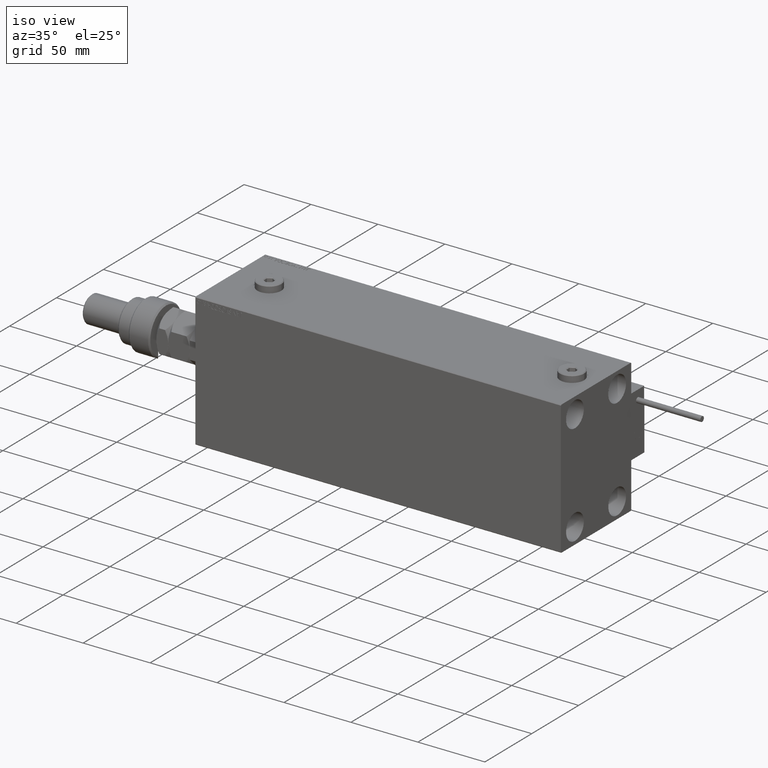
[diagram: clean part render]
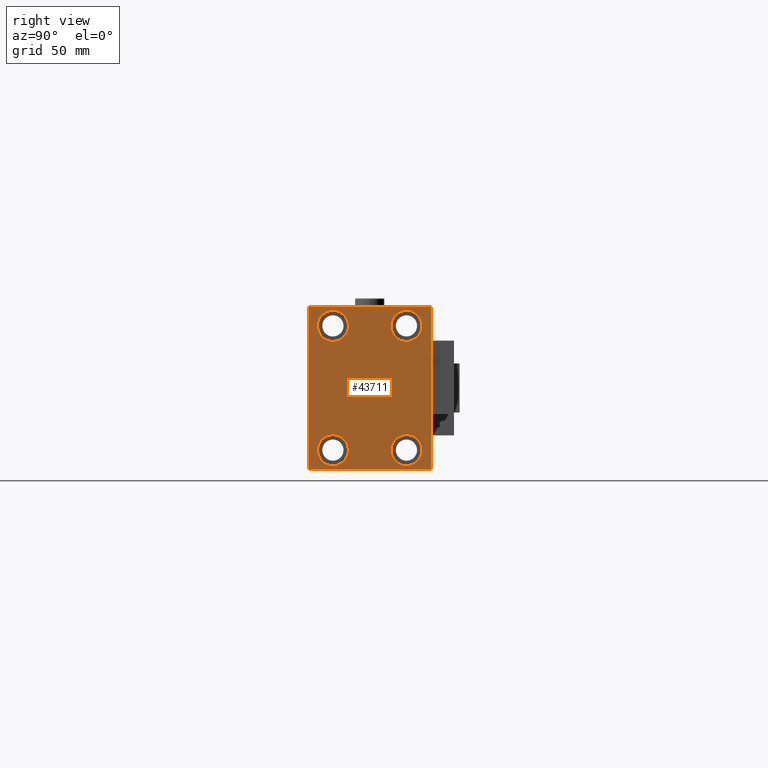
[diagram: tour spotlight — one face highlighted and labeled with its STEP entity id]
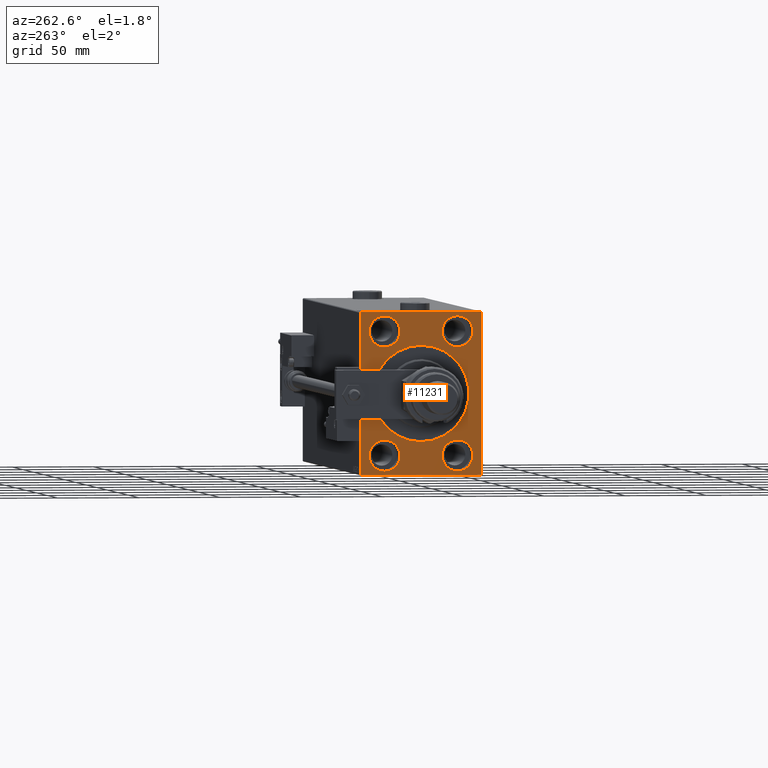
[diagram: tour spotlight — one face highlighted and labeled with its STEP entity id]
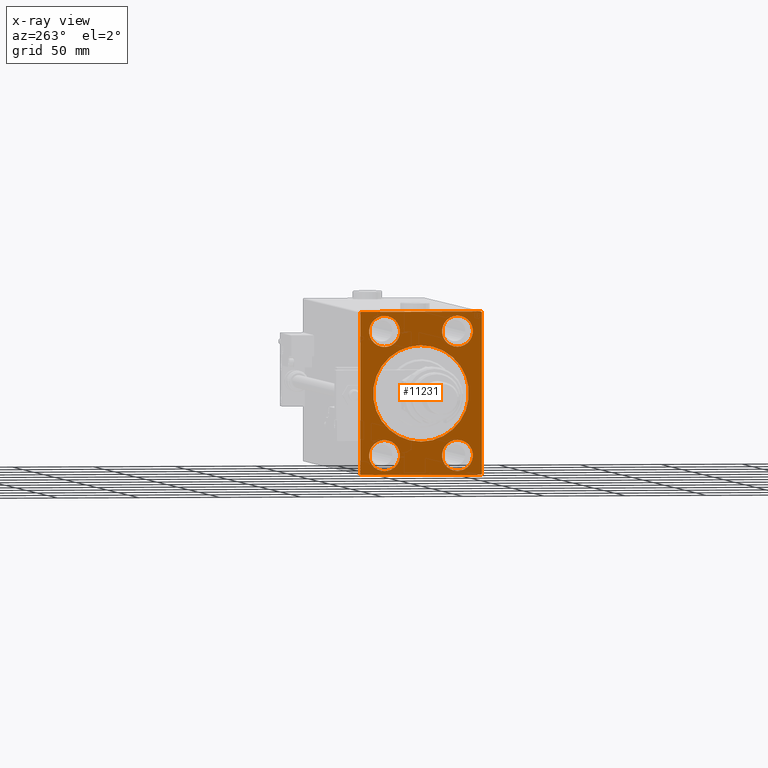
[diagram: x-ray of the same camera — body ghosted, this tour face saturated]
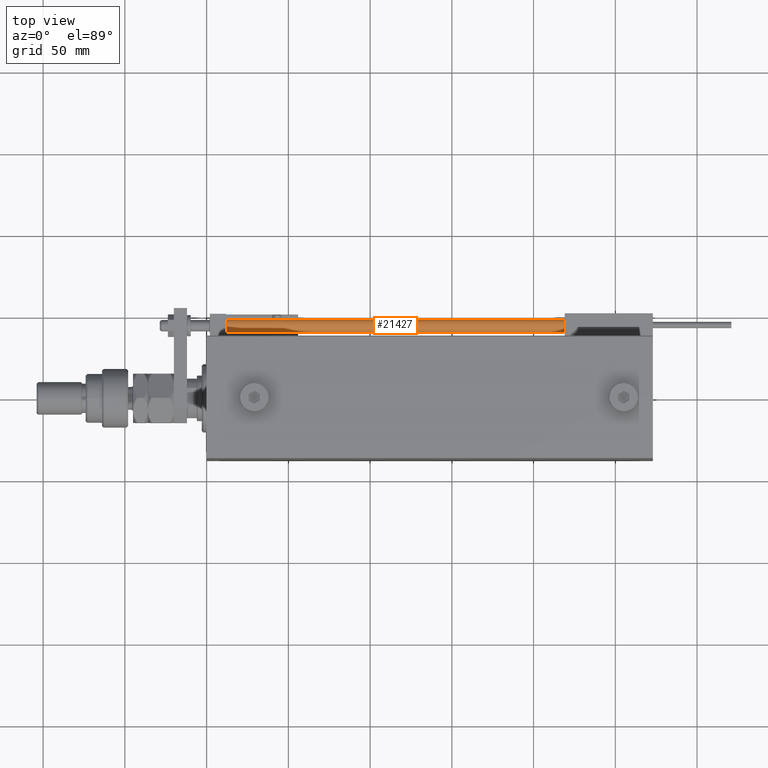
[diagram: tour spotlight — one face highlighted and labeled with its STEP entity id]
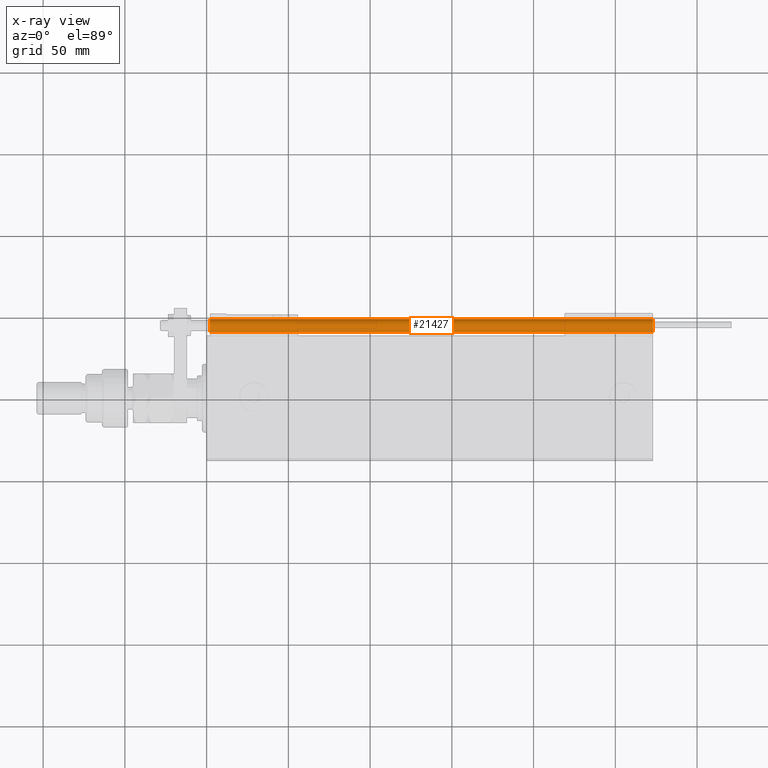
[diagram: x-ray of the same camera — body ghosted, this tour face saturated]
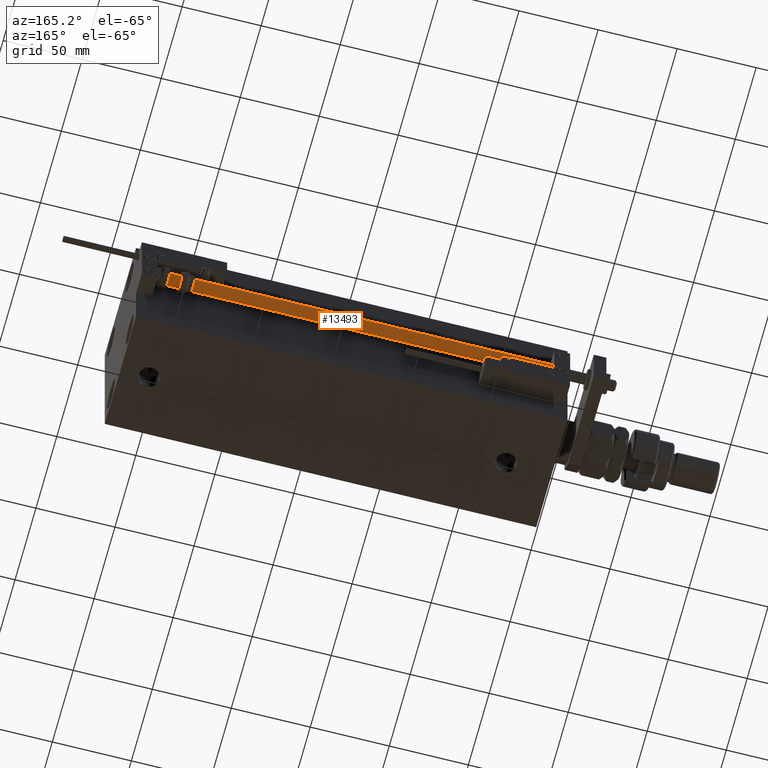
[diagram: tour spotlight — one face highlighted and labeled with its STEP entity id]
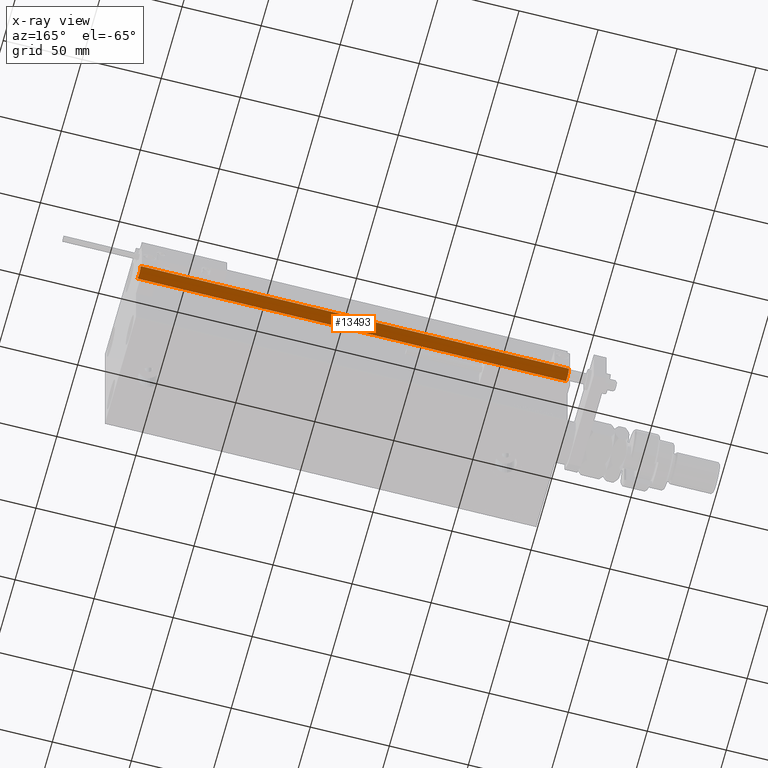
[diagram: x-ray of the same camera — body ghosted, this tour face saturated]
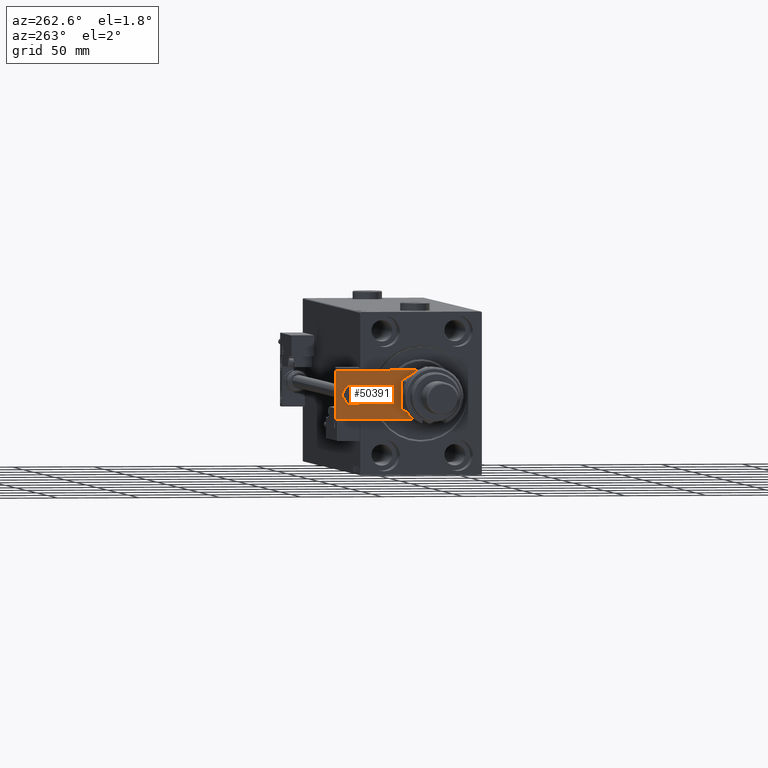
[diagram: tour spotlight — one face highlighted and labeled with its STEP entity id]
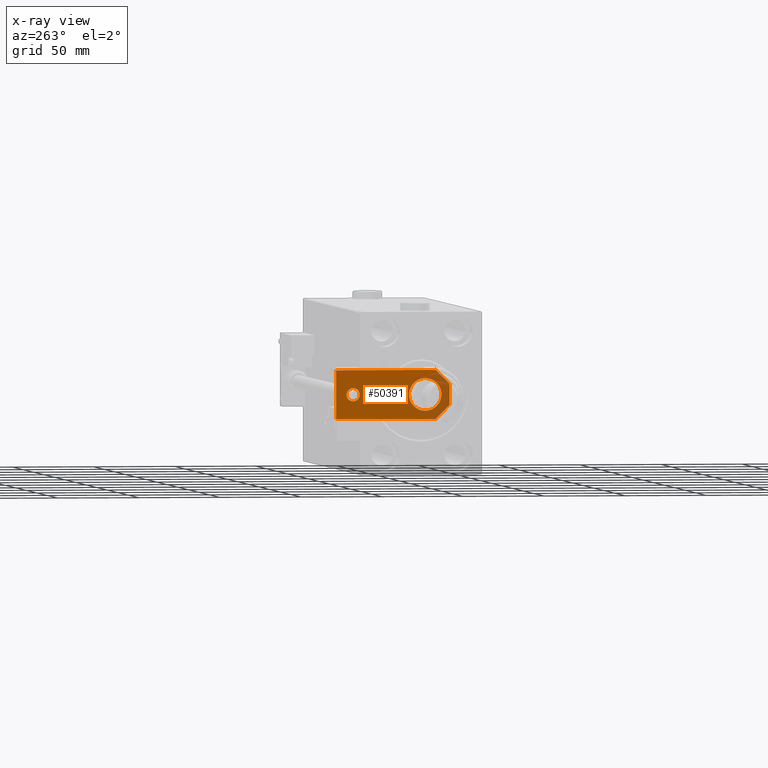
[diagram: x-ray of the same camera — body ghosted, this tour face saturated]
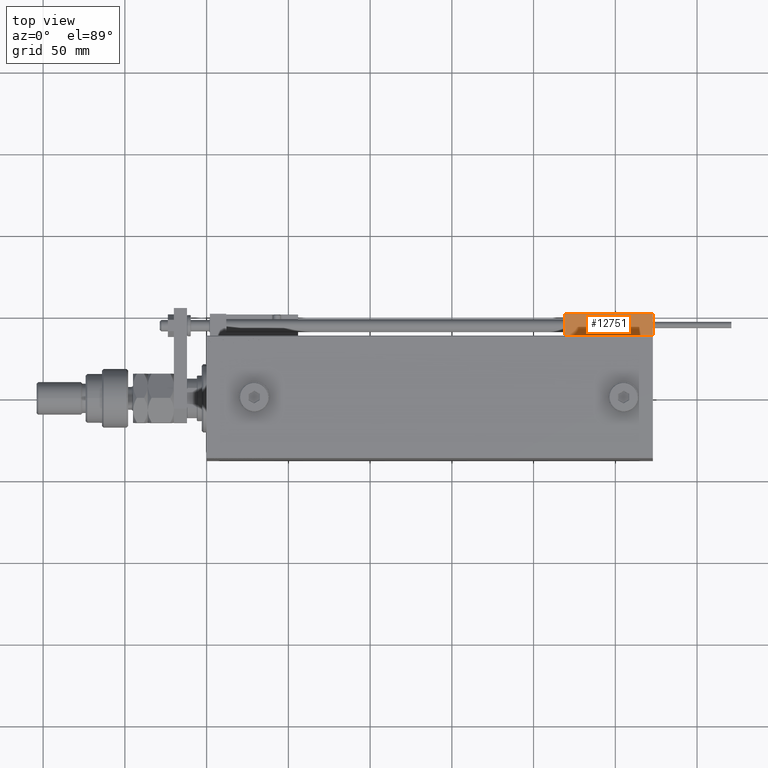
[diagram: tour spotlight — one face highlighted and labeled with its STEP entity id]
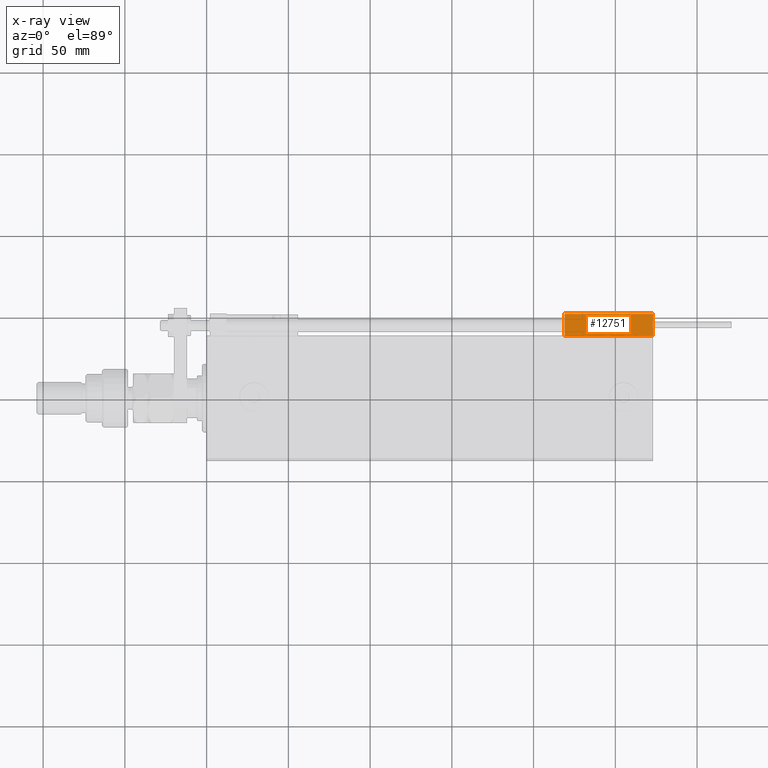
[diagram: x-ray of the same camera — body ghosted, this tour face saturated]
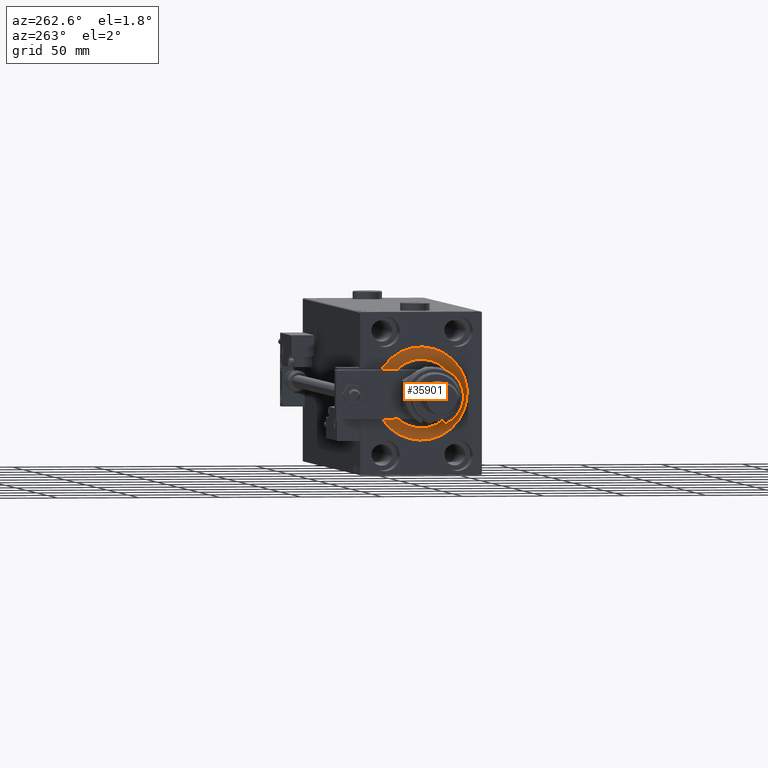
[diagram: tour spotlight — one face highlighted and labeled with its STEP entity id]
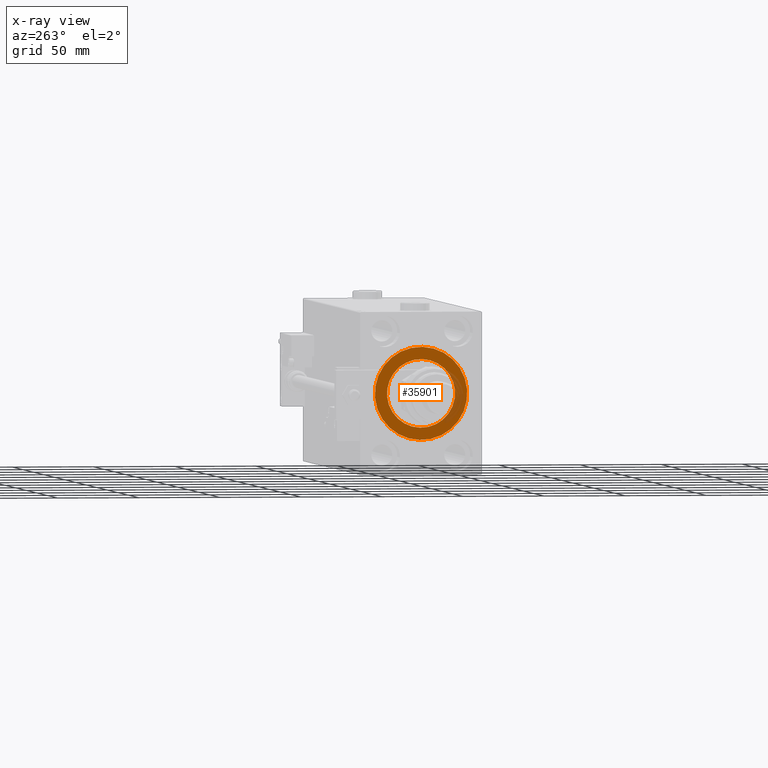
[diagram: x-ray of the same camera — body ghosted, this tour face saturated]
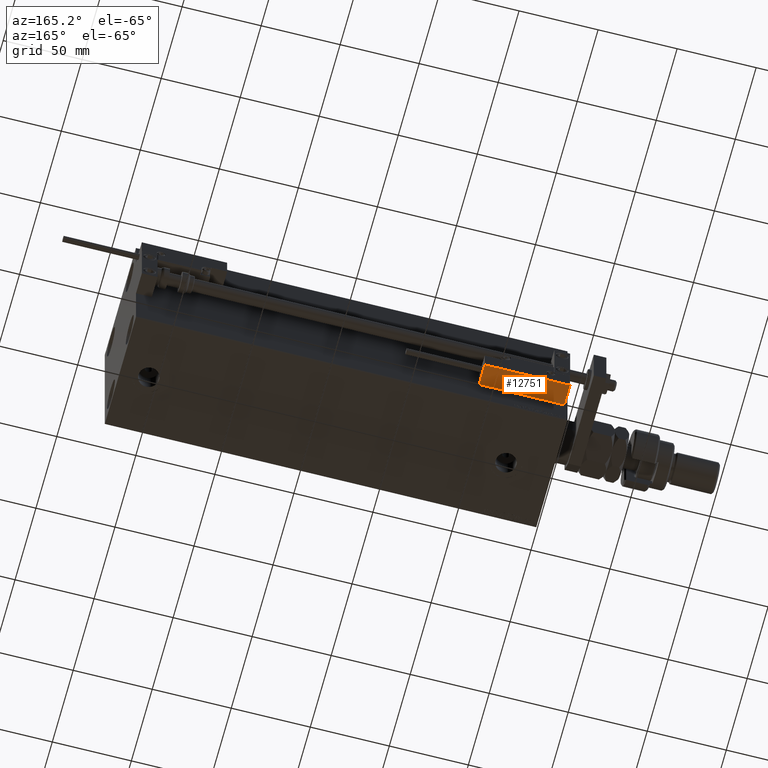
[diagram: tour spotlight — one face highlighted and labeled with its STEP entity id]
A machine part: a face-by-face anatomy tour. The part has 1424 B-rep faces; the first image is the clean iso view, then the 8 largest visible faces are spotlighted one at a time (largest first), each with its STEP entity span.

Face 1 — right view, entity #43711. In plain terms, the highlighted planar face has unit normal (1, 0, 0).
Definition (entity closure, byte-faithful):
#264 = VERTEX_POINT ( 'NONE', #697 ) ;
#303 = DIRECTION ( 'NONE',  ( 0.000000000000000000, 0.000000000000000000, 1.000000000000000000 ) ) ;
#697 = CARTESIAN_POINT ( 'NONE',  ( 273.0000000000000000, -36.99999999999997868, -50.00000000000000711 ) ) ;
#1445 = EDGE_CURVE ( 'NONE', #5358, #264, #39771, .T. ) ;
#1546 = CARTESIAN_POINT ( 'NONE',  ( 273.0000000000000000, -22.50000000000000711, -47.49999999999999289 ) ) ;
#1777 = ORIENTED_EDGE ( 'NONE', *, *, #27452, .T. ) ;
#2280 = ORIENTED_EDGE ( 'NONE', *, *, #25174, .T. ) ;
#2438 = FACE_BOUND ( 'NONE', #12095, .T. ) ;
#3258 = CARTESIAN_POINT ( 'NONE',  ( 273.0000000000000000, 0.000000000000000000, 0.000000000000000000 ) ) ;
#5044 = DIRECTION ( 'NONE',  ( -1.000000000000000000, -0.000000000000000000, -0.000000000000000000 ) ) ;
#5323 = AXIS2_PLACEMENT_3D ( 'NONE', #40699, #20551, #54422 ) ;
#5358 = VERTEX_POINT ( 'NONE', #10391 ) ;
#5427 = ORIENTED_EDGE ( 'NONE', *, *, #43320, .T. ) ;
#5966 = EDGE_CURVE ( 'NONE', #7621, #13899, #51327, .T. ) ;
#6301 = AXIS2_PLACEMENT_3D ( 'NONE', #29814, #46888, #17939 ) ;
#6560 = LINE ( 'NONE', #27787, #51893 ) ;
#7181 = CARTESIAN_POINT ( 'NONE',  ( 273.0000000000000000, -43.49999999999997158, 43.49999999999997158 ) ) ;
#7254 = CARTESIAN_POINT ( 'NONE',  ( 273.0000000000000000, 22.50000000000000355, 37.99999999999999289 ) ) ;
#7391 = DIRECTION ( 'NONE',  ( 0.000000000000000000, 0.000000000000000000, -1.000000000000000000 ) ) ;
#7493 = EDGE_LOOP ( 'NONE', ( #1777, #27898 ) ) ;
#7621 = VERTEX_POINT ( 'NONE', #15639 ) ;
#8350 = VECTOR ( 'NONE', #34255, 1000.000000000000000 ) ;
#9624 = DIRECTION ( 'NONE',  ( 0.000000000000000000, 0.000000000000000000, 1.000000000000000000 ) ) ;
#9686 = CARTESIAN_POINT ( 'NONE',  ( 273.0000000000000000, 37.49999999999999289, 49.49999999999995026 ) ) ;
#9981 = ORIENTED_EDGE ( 'NONE', *, *, #19165, .T. ) ;
#10391 = CARTESIAN_POINT ( 'NONE',  ( 273.0000000000000000, -37.50000000000000711, -49.50000000000000711 ) ) ;
#10808 = CARTESIAN_POINT ( 'NONE',  ( 273.0000000000000000, 37.50000000000000711, -50.00000000000000000 ) ) ;
#11209 = EDGE_CURVE ( 'NONE', #28828, #51659, #34984, .T. ) ;
#11315 = LINE ( 'NONE', #7181, #30956 ) ;
#11529 = FACE_BOUND ( 'NONE', #22938, .T. ) ;
#12095 = EDGE_LOOP ( 'NONE', ( #5427, #9981 ) ) ;
#12382 = CARTESIAN_POINT ( 'NONE',  ( 273.0000000000000000, -37.50000000000000711, -50.00000000000000711 ) ) ;
#12608 = EDGE_CURVE ( 'NONE', #21584, #44024, #52426, .T. ) ;
#13149 = AXIS2_PLACEMENT_3D ( 'NONE', #3258, #36071, #7391 ) ;
#13475 = LINE ( 'NONE', #38828, #23867 ) ;
#13646 = CARTESIAN_POINT ( 'NONE',  ( 273.0000000000000000, 37.50000000000000711, -49.49999999999997158 ) ) ;
#13744 = DIRECTION ( 'NONE',  ( 0.000000000000000000, 0.000000000000000000, -1.000000000000000000 ) ) ;
#13899 = VERTEX_POINT ( 'NONE', #50228 ) ;
#14955 = CARTESIAN_POINT ( 'NONE',  ( 273.0000000000000000, -43.49999999999896261, -43.50000000000138556 ) ) ;
#15639 = CARTESIAN_POINT ( 'NONE',  ( 273.0000000000000000, 36.99999999999993605, 50.00000000000000711 ) ) ;
#15674 = AXIS2_PLACEMENT_3D ( 'NONE', #38116, #5044, #21844 ) ;
#15710 = DIRECTION ( 'NONE',  ( 0.000000000000000000, 1.000000000000000000, 9.251858538542970348E-17 ) ) ;
#16833 = VERTEX_POINT ( 'NONE', #32700 ) ;
#17144 = DIRECTION ( 'NONE',  ( -1.000000000000000000, -0.000000000000000000, -0.000000000000000000 ) ) ;
#17742 = CARTESIAN_POINT ( 'NONE',  ( 273.0000000000000000, 22.50000000000000355, 28.49999999999998934 ) ) ;
#17939 = DIRECTION ( 'NONE',  ( 0.000000000000000000, 0.000000000000000000, 1.000000000000000000 ) ) ;
#18427 = AXIS2_PLACEMENT_3D ( 'NONE', #36729, #25131, #303 ) ;
#19165 = EDGE_CURVE ( 'NONE', #35180, #42598, #29874, .T. ) ;
#19259 = PLANE ( 'NONE',  #13149 ) ;
#19684 = EDGE_CURVE ( 'NONE', #51118, #21584, #6560, .T. ) ;
#19861 = LINE ( 'NONE', #12382, #54097 ) ;
#20551 = DIRECTION ( 'NONE',  ( -1.000000000000000000, -0.000000000000000000, -0.000000000000000000 ) ) ;
#21156 = CARTESIAN_POINT ( 'NONE',  ( 273.0000000000000000, -22.50000000000000711, -37.99999999999999289 ) ) ;
#21584 = VERTEX_POINT ( 'NONE', #13646 ) ;
#21844 = DIRECTION ( 'NONE',  ( 0.000000000000000000, 0.000000000000000000, 1.000000000000000000 ) ) ;
#21956 = DIRECTION ( 'NONE',  ( -1.000000000000000000, -0.000000000000000000, -0.000000000000000000 ) ) ;
#22697 = CIRCLE ( 'NONE', #15674, 9.500000000000001776 ) ;
#22938 = EDGE_LOOP ( 'NONE', ( #30055, #2280 ) ) ;
#23024 = EDGE_CURVE ( 'NONE', #16833, #5358, #13475, .T. ) ;
#23148 = VERTEX_POINT ( 'NONE', #26549 ) ;
#23317 = EDGE_CURVE ( 'NONE', #49312, #23148, #26487, .T. ) ;
#23867 = VECTOR ( 'NONE', #13744, 1000.000000000000000 ) ;
#24340 = DIRECTION ( 'NONE',  ( 0.000000000000000000, 0.000000000000000000, 1.000000000000000000 ) ) ;
#24511 = ORIENTED_EDGE ( 'NONE', *, *, #12608, .T. ) ;
#24605 = AXIS2_PLACEMENT_3D ( 'NONE', #34637, #21956, #26104 ) ;
#25131 = DIRECTION ( 'NONE',  ( -1.000000000000000000, -0.000000000000000000, -0.000000000000000000 ) ) ;
#25174 = EDGE_CURVE ( 'NONE', #23148, #49312, #29078, .T. ) ;
#25476 = EDGE_CURVE ( 'NONE', #44024, #7621, #37292, .T. ) ;
#25653 = ORIENTED_EDGE ( 'NONE', *, *, #40281, .T. ) ;
#26104 = DIRECTION ( 'NONE',  ( 0.000000000000000000, 0.000000000000000000, 1.000000000000000000 ) ) ;
#26487 = CIRCLE ( 'NONE', #30897, 9.500000000000001776 ) ;
#26549 = CARTESIAN_POINT ( 'NONE',  ( 273.0000000000000000, 22.50000000000000355, 47.49999999999999289 ) ) ;
#27086 = DIRECTION ( 'NONE',  ( -0.000000000000000000, 0.7071067811865672237, -0.7071067811865279218 ) ) ;
#27337 = CARTESIAN_POINT ( 'NONE',  ( 273.0000000000000000, 22.49999999999999645, -28.49999999999998934 ) ) ;
#27438 = CARTESIAN_POINT ( 'NONE',  ( 273.0000000000000000, -22.50000000000000711, -28.49999999999998934 ) ) ;
#27452 = EDGE_CURVE ( 'NONE', #51659, #28828, #41483, .T. ) ;
#27787 = CARTESIAN_POINT ( 'NONE',  ( 273.0000000000000000, 43.50000000000103029, -43.49999999999860734 ) ) ;
#27898 = ORIENTED_EDGE ( 'NONE', *, *, #11209, .T. ) ;
#28343 = FACE_BOUND ( 'NONE', #7493, .T. ) ;
#28588 = VECTOR ( 'NONE', #27086, 1000.000000000000000 ) ;
#28828 = VERTEX_POINT ( 'NONE', #27337 ) ;
#29078 = CIRCLE ( 'NONE', #5323, 9.500000000000001776 ) ;
#29701 = DIRECTION ( 'NONE',  ( 0.000000000000000000, 0.000000000000000000, 1.000000000000000000 ) ) ;
#29814 = CARTESIAN_POINT ( 'NONE',  ( 273.0000000000000000, 22.49999999999999645, -37.99999999999999289 ) ) ;
#29874 = CIRCLE ( 'NONE', #18427, 9.500000000000001776 ) ;
#30055 = ORIENTED_EDGE ( 'NONE', *, *, #23317, .T. ) ;
#30596 = ORIENTED_EDGE ( 'NONE', *, *, #25476, .T. ) ;
#30897 = AXIS2_PLACEMENT_3D ( 'NONE', #7254, #17144, #24340 ) ;
#30956 = VECTOR ( 'NONE', #36674, 1000.000000000000114 ) ;
#31805 = CARTESIAN_POINT ( 'NONE',  ( 273.0000000000000000, 22.49999999999999645, -47.49999999999999289 ) ) ;
#31915 = DIRECTION ( 'NONE',  ( -0.000000000000000000, 0.7071067811865279218, 0.7071067811865672237 ) ) ;
#32356 = DIRECTION ( 'NONE',  ( -0.000000000000000000, -0.7071067811865426878, 0.7071067811865524577 ) ) ;
#32626 = CARTESIAN_POINT ( 'NONE',  ( 273.0000000000000000, 43.50000000000022737, 43.49999999999962341 ) ) ;
#32700 = CARTESIAN_POINT ( 'NONE',  ( 273.0000000000000000, -37.50000000000000711, 49.49999999999994316 ) ) ;
#32834 = ORIENTED_EDGE ( 'NONE', *, *, #34574, .T. ) ;
#32904 = VERTEX_POINT ( 'NONE', #43330 ) ;
#34255 = DIRECTION ( 'NONE',  ( 0.000000000000000000, -1.000000000000000000, -1.850371707708594316E-16 ) ) ;
#34315 = ORIENTED_EDGE ( 'NONE', *, *, #5966, .T. ) ;
#34574 = EDGE_CURVE ( 'NONE', #264, #51118, #19861, .T. ) ;
#34637 = CARTESIAN_POINT ( 'NONE',  ( 273.0000000000000000, -22.49999999999999645, 37.99999999999999289 ) ) ;
#34984 = CIRCLE ( 'NONE', #51691, 9.500000000000001776 ) ;
#35180 = VERTEX_POINT ( 'NONE', #27438 ) ;
#35811 = ORIENTED_EDGE ( 'NONE', *, *, #52883, .T. ) ;
#36071 = DIRECTION ( 'NONE',  ( 1.000000000000000000, 0.000000000000000000, 0.000000000000000000 ) ) ;
#36183 = EDGE_LOOP ( 'NONE', ( #25653, #42882 ) ) ;
#36624 = FACE_BOUND ( 'NONE', #36183, .T. ) ;
#36674 = DIRECTION ( 'NONE',  ( 0.000000000000000000, -0.7071067811865474617, -0.7071067811865474617 ) ) ;
#36729 = CARTESIAN_POINT ( 'NONE',  ( 273.0000000000000000, -22.50000000000000711, -37.99999999999999289 ) ) ;
#37032 = ORIENTED_EDGE ( 'NONE', *, *, #1445, .T. ) ;
#37160 = CARTESIAN_POINT ( 'NONE',  ( 273.0000000000000000, 37.00000000000000711, -50.00000000000000000 ) ) ;
#37292 = LINE ( 'NONE', #32626, #47566 ) ;
#38116 = CARTESIAN_POINT ( 'NONE',  ( 273.0000000000000000, -22.49999999999999645, 37.99999999999999289 ) ) ;
#38117 = CARTESIAN_POINT ( 'NONE',  ( 273.0000000000000000, 37.49999999999999289, 50.00000000000000711 ) ) ;
#38828 = CARTESIAN_POINT ( 'NONE',  ( 273.0000000000000000, -37.50000000000000711, 49.99999999999999289 ) ) ;
#39771 = LINE ( 'NONE', #14955, #28588 ) ;
#40281 = EDGE_CURVE ( 'NONE', #48365, #32904, #22697, .T. ) ;
#40699 = CARTESIAN_POINT ( 'NONE',  ( 273.0000000000000000, 22.50000000000000355, 37.99999999999999289 ) ) ;
#41483 = CIRCLE ( 'NONE', #6301, 9.500000000000001776 ) ;
#42190 = CIRCLE ( 'NONE', #24605, 9.500000000000001776 ) ;
#42384 = DIRECTION ( 'NONE',  ( -1.000000000000000000, -0.000000000000000000, -0.000000000000000000 ) ) ;
#42598 = VERTEX_POINT ( 'NONE', #1546 ) ;
#42882 = ORIENTED_EDGE ( 'NONE', *, *, #43405, .T. ) ;
#42904 = CARTESIAN_POINT ( 'NONE',  ( 273.0000000000000000, -22.49999999999999645, 28.49999999999998934 ) ) ;
#43320 = EDGE_CURVE ( 'NONE', #42598, #35180, #50092, .T. ) ;
#43330 = CARTESIAN_POINT ( 'NONE',  ( 273.0000000000000000, -22.49999999999999645, 47.49999999999999289 ) ) ;
#43405 = EDGE_CURVE ( 'NONE', #32904, #48365, #42190, .T. ) ;
#43711 = ADVANCED_FACE ( 'NONE', ( #28343, #36624, #11529, #2438, #45150 ), #19259, .T. ) ;
#44024 = VERTEX_POINT ( 'NONE', #9686 ) ;
#45150 = FACE_OUTER_BOUND ( 'NONE', #51800, .T. ) ;
#46888 = DIRECTION ( 'NONE',  ( -1.000000000000000000, -0.000000000000000000, -0.000000000000000000 ) ) ;
#47566 = VECTOR ( 'NONE', #32356, 1000.000000000000000 ) ;
#47662 = CARTESIAN_POINT ( 'NONE',  ( 273.0000000000000000, 22.49999999999999645, -37.99999999999999289 ) ) ;
#48208 = DIRECTION ( 'NONE',  ( -1.000000000000000000, -0.000000000000000000, -0.000000000000000000 ) ) ;
#48365 = VERTEX_POINT ( 'NONE', #42904 ) ;
#48776 = ORIENTED_EDGE ( 'NONE', *, *, #23024, .T. ) ;
#49112 = VECTOR ( 'NONE', #51127, 1000.000000000000000 ) ;
#49312 = VERTEX_POINT ( 'NONE', #17742 ) ;
#50092 = CIRCLE ( 'NONE', #51846, 9.500000000000001776 ) ;
#50228 = CARTESIAN_POINT ( 'NONE',  ( 273.0000000000000000, -36.99999999999995026, 49.99999999999999289 ) ) ;
#51118 = VERTEX_POINT ( 'NONE', #37160 ) ;
#51127 = DIRECTION ( 'NONE',  ( 0.000000000000000000, -1.387778780781445676E-16, 1.000000000000000000 ) ) ;
#51327 = LINE ( 'NONE', #38117, #8350 ) ;
#51659 = VERTEX_POINT ( 'NONE', #31805 ) ;
#51691 = AXIS2_PLACEMENT_3D ( 'NONE', #47662, #48208, #9624 ) ;
#51800 = EDGE_LOOP ( 'NONE', ( #34315, #35811, #48776, #37032, #32834, #53660, #24511, #30596 ) ) ;
#51846 = AXIS2_PLACEMENT_3D ( 'NONE', #21156, #42384, #29701 ) ;
#51893 = VECTOR ( 'NONE', #31915, 1000.000000000000000 ) ;
#52426 = LINE ( 'NONE', #10808, #49112 ) ;
#52883 = EDGE_CURVE ( 'NONE', #13899, #16833, #11315, .T. ) ;
#53660 = ORIENTED_EDGE ( 'NONE', *, *, #19684, .T. ) ;
#54097 = VECTOR ( 'NONE', #15710, 1000.000000000000000 ) ;
#54422 = DIRECTION ( 'NONE',  ( 0.000000000000000000, 0.000000000000000000, 1.000000000000000000 ) ) ;

Face 2 — auxiliary view, entity #11231. An x-ray twin of the same camera follows (body ghosted, this face saturated) — the face is partly hidden behind the body. In plain terms, the highlighted planar face has unit normal (1, 0, 0).
Definition (entity closure, byte-faithful):
#616 = CARTESIAN_POINT ( 'NONE',  ( 0.000000000000000000, 22.49999999999999645, -28.49999999999998934 ) ) ;
#1551 = DIRECTION ( 'NONE',  ( 0.000000000000000000, -1.000000000000000000, -1.850371707708594316E-16 ) ) ;
#1773 = CIRCLE ( 'NONE', #33576, 9.500000000000001776 ) ;
#1780 = ORIENTED_EDGE ( 'NONE', *, *, #24076, .F. ) ;
#1828 = CARTESIAN_POINT ( 'NONE',  ( 0.000000000000000000, 37.49999999999999289, 50.00000000000000711 ) ) ;
#1840 = EDGE_LOOP ( 'NONE', ( #44565, #27151 ) ) ;
#1908 = FACE_BOUND ( 'NONE', #1840, .T. ) ;
#2052 = ORIENTED_EDGE ( 'NONE', *, *, #34339, .F. ) ;
#2096 = CARTESIAN_POINT ( 'NONE',  ( 0.000000000000000000, 22.49999999999999645, -37.99999999999999289 ) ) ;
#2666 = VERTEX_POINT ( 'NONE', #52029 ) ;
#3075 = VECTOR ( 'NONE', #1551, 1000.000000000000000 ) ;
#3670 = VECTOR ( 'NONE', #37001, 1000.000000000000000 ) ;
#4015 = PLANE ( 'NONE',  #29715 ) ;
#5280 = LINE ( 'NONE', #26225, #13919 ) ;
#5297 = EDGE_CURVE ( 'NONE', #14817, #2666, #24229, .T. ) ;
#5799 = VERTEX_POINT ( 'NONE', #26318 ) ;
#5829 = DIRECTION ( 'NONE',  ( 0.000000000000000000, 0.000000000000000000, 1.000000000000000000 ) ) ;
#6041 = FACE_BOUND ( 'NONE', #49040, .T. ) ;
#6260 = ORIENTED_EDGE ( 'NONE', *, *, #31093, .F. ) ;
#6951 = DIRECTION ( 'NONE',  ( 0.000000000000000000, 0.000000000000000000, 1.000000000000000000 ) ) ;
#7520 = LINE ( 'NONE', #32597, #3670 ) ;
#7805 = DIRECTION ( 'NONE',  ( 0.000000000000000000, 0.000000000000000000, 1.000000000000000000 ) ) ;
#8029 = EDGE_CURVE ( 'NONE', #36516, #50538, #42757, .T. ) ;
#8612 = CARTESIAN_POINT ( 'NONE',  ( 0.000000000000000000, 22.50000000000000355, 37.99999999999999289 ) ) ;
#9215 = CARTESIAN_POINT ( 'NONE',  ( 0.000000000000000000, -22.50000000000000711, -47.49999999999999289 ) ) ;
#9344 = DIRECTION ( 'NONE',  ( 0.000000000000000000, -0.7071067811865279218, -0.7071067811865672237 ) ) ;
#9415 = CARTESIAN_POINT ( 'NONE',  ( 0.000000000000000000, -22.49999999999999645, 37.99999999999999289 ) ) ;
#9502 = ORIENTED_EDGE ( 'NONE', *, *, #49534, .T. ) ;
#10580 = AXIS2_PLACEMENT_3D ( 'NONE', #23803, #31794, #36206 ) ;
#10863 = AXIS2_PLACEMENT_3D ( 'NONE', #13399, #42897, #34342 ) ;
#11231 = ADVANCED_FACE ( 'NONE', ( #43807, #6041, #1908, #34442, #51245, #47121 ), #4015, .F. ) ;
#11274 = DIRECTION ( 'NONE',  ( 0.000000000000000000, 0.000000000000000000, -1.000000000000000000 ) ) ;
#12311 = CIRCLE ( 'NONE', #43118, 9.500000000000001776 ) ;
#12755 = DIRECTION ( 'NONE',  ( -1.000000000000000000, 0.000000000000000000, 0.000000000000000000 ) ) ;
#13021 = DIRECTION ( 'NONE',  ( -1.000000000000000000, 0.000000000000000000, 0.000000000000000000 ) ) ;
#13243 = VERTEX_POINT ( 'NONE', #42952 ) ;
#13247 = EDGE_LOOP ( 'NONE', ( #22190, #9502 ) ) ;
#13399 = CARTESIAN_POINT ( 'NONE',  ( 0.000000000000000000, -22.50000000000000711, -37.99999999999999289 ) ) ;
#13817 = DIRECTION ( 'NONE',  ( 0.000000000000000000, 0.000000000000000000, 1.000000000000000000 ) ) ;
#13906 = EDGE_CURVE ( 'NONE', #31701, #42413, #34051, .T. ) ;
#13919 = VECTOR ( 'NONE', #23173, 1000.000000000000000 ) ;
#14817 = VERTEX_POINT ( 'NONE', #34909 ) ;
#14900 = DIRECTION ( 'NONE',  ( 1.000000000000000000, 0.000000000000000000, 0.000000000000000000 ) ) ;
#16822 = VERTEX_POINT ( 'NONE', #32435 ) ;
#17125 = CIRCLE ( 'NONE', #34746, 9.500000000000001776 ) ;
#17149 = DIRECTION ( 'NONE',  ( -1.000000000000000000, 0.000000000000000000, 0.000000000000000000 ) ) ;
#17933 = LINE ( 'NONE', #34752, #49696 ) ;
#18050 = ORIENTED_EDGE ( 'NONE', *, *, #37746, .F. ) ;
#18914 = DIRECTION ( 'NONE',  ( 0.000000000000000000, 0.000000000000000000, 1.000000000000000000 ) ) ;
#18982 = AXIS2_PLACEMENT_3D ( 'NONE', #35856, #14900, #28134 ) ;
#19305 = LINE ( 'NONE', #19582, #51961 ) ;
#19582 = CARTESIAN_POINT ( 'NONE',  ( 0.000000000000000000, -37.50000000000000711, 49.99999999999999289 ) ) ;
#20207 = CARTESIAN_POINT ( 'NONE',  ( 0.000000000000000000, 0.000000000000000000, 29.50000000000002842 ) ) ;
#20801 = CARTESIAN_POINT ( 'NONE',  ( 0.000000000000000000, 3.612708057484695548E-15, -29.50000000000002842 ) ) ;
#21475 = VERTEX_POINT ( 'NONE', #48971 ) ;
#22190 = ORIENTED_EDGE ( 'NONE', *, *, #8029, .T. ) ;
#22849 = DIRECTION ( 'NONE',  ( -0.000000000000000000, 0.7071067811865474617, 0.7071067811865474617 ) ) ;
#23022 = ORIENTED_EDGE ( 'NONE', *, *, #44030, .F. ) ;
#23063 = CARTESIAN_POINT ( 'NONE',  ( 0.000000000000000000, 22.50000000000000355, 37.99999999999999289 ) ) ;
#23173 = DIRECTION ( 'NONE',  ( -0.000000000000000000, 0.7071067811865426878, -0.7071067811865524577 ) ) ;
#23368 = VERTEX_POINT ( 'NONE', #45553 ) ;
#23412 = CARTESIAN_POINT ( 'NONE',  ( 0.000000000000000000, -37.50000000000000711, 49.49999999999994316 ) ) ;
#23803 = CARTESIAN_POINT ( 'NONE',  ( 0.000000000000000000, 0.000000000000000000, 0.000000000000000000 ) ) ;
#24076 = EDGE_CURVE ( 'NONE', #46407, #21475, #1773, .T. ) ;
#24229 = CIRCLE ( 'NONE', #54101, 9.500000000000001776 ) ;
#24348 = AXIS2_PLACEMENT_3D ( 'NONE', #24883, #12755, #7805 ) ;
#24721 = ORIENTED_EDGE ( 'NONE', *, *, #45438, .T. ) ;
#24883 = CARTESIAN_POINT ( 'NONE',  ( 0.000000000000000000, 22.49999999999999645, -37.99999999999999289 ) ) ;
#25283 = CARTESIAN_POINT ( 'NONE',  ( 0.000000000000000000, -37.50000000000000711, -49.50000000000000711 ) ) ;
#25475 = DIRECTION ( 'NONE',  ( 0.000000000000000000, 0.000000000000000000, 1.000000000000000000 ) ) ;
#26225 = CARTESIAN_POINT ( 'NONE',  ( 0.000000000000000000, 36.99999999999993605, 50.00000000000000711 ) ) ;
#26318 = CARTESIAN_POINT ( 'NONE',  ( 0.000000000000000000, -37.50000000000000711, 49.49999999999994316 ) ) ;
#26507 = CARTESIAN_POINT ( 'NONE',  ( 0.000000000000000000, -22.50000000000000711, -28.49999999999998934 ) ) ;
#27151 = ORIENTED_EDGE ( 'NONE', *, *, #33972, .F. ) ;
#27335 = EDGE_CURVE ( 'NONE', #35000, #50276, #7520, .T. ) ;
#27430 = ORIENTED_EDGE ( 'NONE', *, *, #5297, .F. ) ;
#27479 = DIRECTION ( 'NONE',  ( 0.000000000000000000, 0.000000000000000000, 1.000000000000000000 ) ) ;
#27533 = CARTESIAN_POINT ( 'NONE',  ( 0.000000000000000000, 0.000000000000000000, 0.000000000000000000 ) ) ;
#27942 = CARTESIAN_POINT ( 'NONE',  ( 0.000000000000000000, -22.49999999999999645, 47.49999999999999289 ) ) ;
#28134 = DIRECTION ( 'NONE',  ( 0.000000000000000000, 0.000000000000000000, -1.000000000000000000 ) ) ;
#28957 = AXIS2_PLACEMENT_3D ( 'NONE', #8612, #13021, #5829 ) ;
#29715 = AXIS2_PLACEMENT_3D ( 'NONE', #27533, #36082, #11274 ) ;
#29927 = EDGE_LOOP ( 'NONE', ( #27430, #23022 ) ) ;
#29996 = ORIENTED_EDGE ( 'NONE', *, *, #48601, .F. ) ;
#30651 = VECTOR ( 'NONE', #9344, 1000.000000000000000 ) ;
#31093 = EDGE_CURVE ( 'NONE', #37310, #51832, #52204, .T. ) ;
#31701 = VERTEX_POINT ( 'NONE', #27942 ) ;
#31794 = DIRECTION ( 'NONE',  ( 1.000000000000000000, 0.000000000000000000, 0.000000000000000000 ) ) ;
#31977 = DIRECTION ( 'NONE',  ( 0.000000000000000000, 0.000000000000000000, -1.000000000000000000 ) ) ;
#32435 = CARTESIAN_POINT ( 'NONE',  ( 0.000000000000000000, 36.99999999999993605, 50.00000000000000711 ) ) ;
#32597 = CARTESIAN_POINT ( 'NONE',  ( 0.000000000000000000, -36.99999999999997868, -50.00000000000000711 ) ) ;
#33189 = AXIS2_PLACEMENT_3D ( 'NONE', #9415, #17149, #13817 ) ;
#33576 = AXIS2_PLACEMENT_3D ( 'NONE', #2096, #52254, #18914 ) ;
#33972 = EDGE_CURVE ( 'NONE', #42413, #31701, #17125, .T. ) ;
#34051 = CIRCLE ( 'NONE', #33189, 9.500000000000001776 ) ;
#34239 = CARTESIAN_POINT ( 'NONE',  ( 0.000000000000000000, -36.99999999999995026, 49.99999999999999289 ) ) ;
#34282 = CARTESIAN_POINT ( 'NONE',  ( 0.000000000000000000, -22.50000000000000711, -37.99999999999999289 ) ) ;
#34339 = EDGE_CURVE ( 'NONE', #35000, #49374, #17933, .T. ) ;
#34342 = DIRECTION ( 'NONE',  ( 0.000000000000000000, 0.000000000000000000, 1.000000000000000000 ) ) ;
#34442 = FACE_BOUND ( 'NONE', #29927, .T. ) ;
#34746 = AXIS2_PLACEMENT_3D ( 'NONE', #37243, #53783, #6951 ) ;
#34752 = CARTESIAN_POINT ( 'NONE',  ( 0.000000000000000000, -37.50000000000000711, -50.00000000000000711 ) ) ;
#34909 = CARTESIAN_POINT ( 'NONE',  ( 0.000000000000000000, 22.50000000000000355, 47.49999999999999289 ) ) ;
#35000 = VERTEX_POINT ( 'NONE', #41815 ) ;
#35810 = LINE ( 'NONE', #23412, #41404 ) ;
#35856 = CARTESIAN_POINT ( 'NONE',  ( 0.000000000000000000, 0.000000000000000000, 0.000000000000000000 ) ) ;
#36082 = DIRECTION ( 'NONE',  ( 1.000000000000000000, 0.000000000000000000, 0.000000000000000000 ) ) ;
#36206 = DIRECTION ( 'NONE',  ( 0.000000000000000000, 0.000000000000000000, -1.000000000000000000 ) ) ;
#36300 = DIRECTION ( 'NONE',  ( -1.000000000000000000, 0.000000000000000000, 0.000000000000000000 ) ) ;
#36516 = VERTEX_POINT ( 'NONE', #20207 ) ;
#36974 = ORIENTED_EDGE ( 'NONE', *, *, #38370, .F. ) ;
#37001 = DIRECTION ( 'NONE',  ( -0.000000000000000000, -0.7071067811865672237, 0.7071067811865279218 ) ) ;
#37130 = EDGE_LOOP ( 'NONE', ( #44898, #24721, #18050, #38416, #50994, #43153, #2052, #48708 ) ) ;
#37243 = CARTESIAN_POINT ( 'NONE',  ( 0.000000000000000000, -22.49999999999999645, 37.99999999999999289 ) ) ;
#37310 = VERTEX_POINT ( 'NONE', #9215 ) ;
#37746 = EDGE_CURVE ( 'NONE', #16822, #51812, #52256, .T. ) ;
#37882 = CIRCLE ( 'NONE', #10580, 29.50000000000002842 ) ;
#37968 = VECTOR ( 'NONE', #49015, 1000.000000000000000 ) ;
#38143 = DIRECTION ( 'NONE',  ( -1.000000000000000000, 0.000000000000000000, 0.000000000000000000 ) ) ;
#38370 = EDGE_CURVE ( 'NONE', #21475, #46407, #40206, .T. ) ;
#38416 = ORIENTED_EDGE ( 'NONE', *, *, #41928, .T. ) ;
#38663 = EDGE_LOOP ( 'NONE', ( #29996, #6260 ) ) ;
#39377 = LINE ( 'NONE', #43509, #30651 ) ;
#40206 = CIRCLE ( 'NONE', #24348, 9.500000000000001776 ) ;
#41232 = EDGE_CURVE ( 'NONE', #23368, #49374, #39377, .T. ) ;
#41404 = VECTOR ( 'NONE', #22849, 1000.000000000000114 ) ;
#41815 = CARTESIAN_POINT ( 'NONE',  ( 0.000000000000000000, -36.99999999999997868, -50.00000000000000711 ) ) ;
#41928 = EDGE_CURVE ( 'NONE', #16822, #13243, #5280, .T. ) ;
#42413 = VERTEX_POINT ( 'NONE', #49546 ) ;
#42489 = DIRECTION ( 'NONE',  ( 0.000000000000000000, 1.000000000000000000, 9.251858538542970348E-17 ) ) ;
#42757 = CIRCLE ( 'NONE', #18982, 29.50000000000002842 ) ;
#42897 = DIRECTION ( 'NONE',  ( -1.000000000000000000, 0.000000000000000000, 0.000000000000000000 ) ) ;
#42952 = CARTESIAN_POINT ( 'NONE',  ( 0.000000000000000000, 37.49999999999999289, 49.49999999999995026 ) ) ;
#43118 = AXIS2_PLACEMENT_3D ( 'NONE', #34282, #38143, #25475 ) ;
#43153 = ORIENTED_EDGE ( 'NONE', *, *, #41232, .T. ) ;
#43379 = CARTESIAN_POINT ( 'NONE',  ( 0.000000000000000000, 37.00000000000000711, -50.00000000000000000 ) ) ;
#43509 = CARTESIAN_POINT ( 'NONE',  ( 0.000000000000000000, 37.50000000000000711, -49.49999999999997158 ) ) ;
#43807 = FACE_BOUND ( 'NONE', #13247, .T. ) ;
#44030 = EDGE_CURVE ( 'NONE', #2666, #14817, #52722, .T. ) ;
#44565 = ORIENTED_EDGE ( 'NONE', *, *, #13906, .F. ) ;
#44898 = ORIENTED_EDGE ( 'NONE', *, *, #46798, .F. ) ;
#45437 = LINE ( 'NONE', #45699, #37968 ) ;
#45438 = EDGE_CURVE ( 'NONE', #5799, #51812, #35810, .T. ) ;
#45553 = CARTESIAN_POINT ( 'NONE',  ( 0.000000000000000000, 37.50000000000000711, -49.49999999999997158 ) ) ;
#45699 = CARTESIAN_POINT ( 'NONE',  ( 0.000000000000000000, 37.50000000000000711, -50.00000000000000000 ) ) ;
#46407 = VERTEX_POINT ( 'NONE', #616 ) ;
#46798 = EDGE_CURVE ( 'NONE', #5799, #50276, #19305, .T. ) ;
#47121 = FACE_OUTER_BOUND ( 'NONE', #37130, .T. ) ;
#48601 = EDGE_CURVE ( 'NONE', #51832, #37310, #12311, .T. ) ;
#48708 = ORIENTED_EDGE ( 'NONE', *, *, #27335, .T. ) ;
#48971 = CARTESIAN_POINT ( 'NONE',  ( 0.000000000000000000, 22.49999999999999645, -47.49999999999999289 ) ) ;
#49015 = DIRECTION ( 'NONE',  ( 0.000000000000000000, -1.387778780781445676E-16, 1.000000000000000000 ) ) ;
#49040 = EDGE_LOOP ( 'NONE', ( #1780, #36974 ) ) ;
#49374 = VERTEX_POINT ( 'NONE', #43379 ) ;
#49534 = EDGE_CURVE ( 'NONE', #50538, #36516, #37882, .T. ) ;
#49546 = CARTESIAN_POINT ( 'NONE',  ( 0.000000000000000000, -22.49999999999999645, 28.49999999999998934 ) ) ;
#49696 = VECTOR ( 'NONE', #42489, 1000.000000000000000 ) ;
#50276 = VERTEX_POINT ( 'NONE', #25283 ) ;
#50538 = VERTEX_POINT ( 'NONE', #20801 ) ;
#50994 = ORIENTED_EDGE ( 'NONE', *, *, #51043, .F. ) ;
#51043 = EDGE_CURVE ( 'NONE', #23368, #13243, #45437, .T. ) ;
#51245 = FACE_BOUND ( 'NONE', #38663, .T. ) ;
#51812 = VERTEX_POINT ( 'NONE', #34239 ) ;
#51832 = VERTEX_POINT ( 'NONE', #26507 ) ;
#51961 = VECTOR ( 'NONE', #31977, 1000.000000000000000 ) ;
#52029 = CARTESIAN_POINT ( 'NONE',  ( 0.000000000000000000, 22.50000000000000355, 28.49999999999998934 ) ) ;
#52204 = CIRCLE ( 'NONE', #10863, 9.500000000000001776 ) ;
#52254 = DIRECTION ( 'NONE',  ( -1.000000000000000000, 0.000000000000000000, 0.000000000000000000 ) ) ;
#52256 = LINE ( 'NONE', #1828, #3075 ) ;
#52722 = CIRCLE ( 'NONE', #28957, 9.500000000000001776 ) ;
#53783 = DIRECTION ( 'NONE',  ( -1.000000000000000000, 0.000000000000000000, 0.000000000000000000 ) ) ;
#54101 = AXIS2_PLACEMENT_3D ( 'NONE', #23063, #36300, #27479 ) ;

Face 3 — top view, entity #21427. An x-ray twin of the same camera follows (body ghosted, this face saturated) — the face is partly hidden behind the body. In plain terms, the highlighted cylindrical surface (edge-blend (fillet) strip) has radius 4 mm, axis along (-1, 0, 0).
Definition (entity closure, byte-faithful):
#22 = CARTESIAN_POINT ( 'NONE',  ( 0.000000000000000000, 0.000000000000000000, 2.000000000000057288 ) ) ;
#304 = EDGE_CURVE ( 'NONE', #29575, #49106, #2336, .T. ) ;
#671 = EDGE_CURVE ( 'NONE', #49106, #14997, #10915, .T. ) ;
#1399 = DIRECTION ( 'NONE',  ( 0.000000000000000000, 0.000000000000000000, 1.000000000000000000 ) ) ;
#1819 = CARTESIAN_POINT ( 'NONE',  ( 4.000000000000000000, 4.898587196589412829E-16, 2.000000000000057288 ) ) ;
#1994 = CARTESIAN_POINT ( 'NONE',  ( 4.000000000000000000, 4.898587196589412829E-16, 273.0000000000000000 ) ) ;
#2336 = LINE ( 'NONE', #35696, #10038 ) ;
#2399 = CYLINDRICAL_SURFACE ( 'NONE', #24688, 4.000000000000000000 ) ;
#2648 = CARTESIAN_POINT ( 'NONE',  ( -4.000000000000000000, 0.000000000000000000, 2.000000000000057288 ) ) ;
#4719 = DIRECTION ( 'NONE',  ( 1.000000000000000000, 0.000000000000000000, 0.000000000000000000 ) ) ;
#7355 = FACE_OUTER_BOUND ( 'NONE', #18123, .T. ) ;
#10038 = VECTOR ( 'NONE', #18600, 1000.000000000000000 ) ;
#10284 = VECTOR ( 'NONE', #34228, 1000.000000000000000 ) ;
#10915 = CIRCLE ( 'NONE', #14449, 4.000000000000000000 ) ;
#11181 = CARTESIAN_POINT ( 'NONE',  ( -4.000000000000000000, 0.000000000000000000, 273.0000000000000000 ) ) ;
#12746 = LINE ( 'NONE', #21280, #10284 ) ;
#13975 = EDGE_CURVE ( 'NONE', #36083, #14997, #12746, .T. ) ;
#14449 = AXIS2_PLACEMENT_3D ( 'NONE', #22, #43028, #4719 ) ;
#14623 = DIRECTION ( 'NONE',  ( 1.000000000000000000, 0.000000000000000000, 0.000000000000000000 ) ) ;
#14997 = VERTEX_POINT ( 'NONE', #2648 ) ;
#18123 = EDGE_LOOP ( 'NONE', ( #22535, #18401, #26378, #44235 ) ) ;
#18401 = ORIENTED_EDGE ( 'NONE', *, *, #304, .T. ) ;
#18600 = DIRECTION ( 'NONE',  ( -0.000000000000000000, -0.000000000000000000, -1.000000000000000000 ) ) ;
#20234 = CIRCLE ( 'NONE', #51028, 4.000000000000000000 ) ;
#21280 = CARTESIAN_POINT ( 'NONE',  ( -4.000000000000000000, 0.000000000000000000, 273.0000000000000000 ) ) ;
#21427 = ADVANCED_FACE ( 'NONE', ( #7355 ), #2399, .T. ) ;
#22535 = ORIENTED_EDGE ( 'NONE', *, *, #47729, .F. ) ;
#23357 = CARTESIAN_POINT ( 'NONE',  ( 0.000000000000000000, 0.000000000000000000, 273.0000000000000000 ) ) ;
#24688 = AXIS2_PLACEMENT_3D ( 'NONE', #23357, #36845, #40998 ) ;
#26378 = ORIENTED_EDGE ( 'NONE', *, *, #671, .T. ) ;
#29575 = VERTEX_POINT ( 'NONE', #1994 ) ;
#34228 = DIRECTION ( 'NONE',  ( -0.000000000000000000, -0.000000000000000000, -1.000000000000000000 ) ) ;
#35696 = CARTESIAN_POINT ( 'NONE',  ( 4.000000000000000000, 4.898587196589412829E-16, 273.0000000000000000 ) ) ;
#36083 = VERTEX_POINT ( 'NONE', #11181 ) ;
#36845 = DIRECTION ( 'NONE',  ( -0.000000000000000000, -0.000000000000000000, -1.000000000000000000 ) ) ;
#40998 = DIRECTION ( 'NONE',  ( -1.000000000000000000, 0.000000000000000000, 0.000000000000000000 ) ) ;
#43028 = DIRECTION ( 'NONE',  ( -0.000000000000000000, -0.000000000000000000, 1.000000000000000000 ) ) ;
#44235 = ORIENTED_EDGE ( 'NONE', *, *, #13975, .F. ) ;
#47729 = EDGE_CURVE ( 'NONE', #29575, #36083, #20234, .T. ) ;
#49106 = VERTEX_POINT ( 'NONE', #1819 ) ;
#51028 = AXIS2_PLACEMENT_3D ( 'NONE', #52384, #1399, #14623 ) ;
#52384 = CARTESIAN_POINT ( 'NONE',  ( 0.000000000000000000, 0.000000000000000000, 273.0000000000000000 ) ) ;

Face 4 — auxiliary view, entity #13493. An x-ray twin of the same camera follows (body ghosted, this face saturated) — the face is partly hidden behind the body. In plain terms, the highlighted cylindrical surface (edge-blend (fillet) strip) has radius 4 mm, axis along (-1, 0, 0).
Definition (entity closure, byte-faithful):
#57 = CIRCLE ( 'NONE', #44112, 4.000000000000000000 ) ;
#232 = AXIS2_PLACEMENT_3D ( 'NONE', #16158, #25251, #24977 ) ;
#304 = EDGE_CURVE ( 'NONE', #29575, #49106, #2336, .T. ) ;
#1268 = DIRECTION ( 'NONE',  ( -0.000000000000000000, -0.000000000000000000, 1.000000000000000000 ) ) ;
#1819 = CARTESIAN_POINT ( 'NONE',  ( 4.000000000000000000, 4.898587196589412829E-16, 2.000000000000057288 ) ) ;
#1994 = CARTESIAN_POINT ( 'NONE',  ( 4.000000000000000000, 4.898587196589412829E-16, 273.0000000000000000 ) ) ;
#2336 = LINE ( 'NONE', #35696, #10038 ) ;
#2648 = CARTESIAN_POINT ( 'NONE',  ( -4.000000000000000000, 0.000000000000000000, 2.000000000000057288 ) ) ;
#2696 = CARTESIAN_POINT ( 'NONE',  ( 0.000000000000000000, 0.000000000000000000, 273.0000000000000000 ) ) ;
#10038 = VECTOR ( 'NONE', #18600, 1000.000000000000000 ) ;
#10129 = ORIENTED_EDGE ( 'NONE', *, *, #34864, .F. ) ;
#10284 = VECTOR ( 'NONE', #34228, 1000.000000000000000 ) ;
#10346 = ORIENTED_EDGE ( 'NONE', *, *, #50345, .T. ) ;
#11181 = CARTESIAN_POINT ( 'NONE',  ( -4.000000000000000000, 0.000000000000000000, 273.0000000000000000 ) ) ;
#12746 = LINE ( 'NONE', #21280, #10284 ) ;
#13493 = ADVANCED_FACE ( 'NONE', ( #17252 ), #25791, .T. ) ;
#13975 = EDGE_CURVE ( 'NONE', #36083, #14997, #12746, .T. ) ;
#14997 = VERTEX_POINT ( 'NONE', #2648 ) ;
#16158 = CARTESIAN_POINT ( 'NONE',  ( 0.000000000000000000, 0.000000000000000000, 273.0000000000000000 ) ) ;
#17252 = FACE_OUTER_BOUND ( 'NONE', #53864, .T. ) ;
#18600 = DIRECTION ( 'NONE',  ( -0.000000000000000000, -0.000000000000000000, -1.000000000000000000 ) ) ;
#21280 = CARTESIAN_POINT ( 'NONE',  ( -4.000000000000000000, 0.000000000000000000, 273.0000000000000000 ) ) ;
#24977 = DIRECTION ( 'NONE',  ( -1.000000000000000000, 0.000000000000000000, 0.000000000000000000 ) ) ;
#25251 = DIRECTION ( 'NONE',  ( -0.000000000000000000, -0.000000000000000000, -1.000000000000000000 ) ) ;
#25791 = CYLINDRICAL_SURFACE ( 'NONE', #232, 4.000000000000000000 ) ;
#25972 = CIRCLE ( 'NONE', #41838, 4.000000000000000000 ) ;
#26358 = CARTESIAN_POINT ( 'NONE',  ( 0.000000000000000000, 0.000000000000000000, 2.000000000000057288 ) ) ;
#27172 = DIRECTION ( 'NONE',  ( 1.000000000000000000, 0.000000000000000000, 0.000000000000000000 ) ) ;
#29575 = VERTEX_POINT ( 'NONE', #1994 ) ;
#31612 = ORIENTED_EDGE ( 'NONE', *, *, #304, .F. ) ;
#31698 = ORIENTED_EDGE ( 'NONE', *, *, #13975, .T. ) ;
#34228 = DIRECTION ( 'NONE',  ( -0.000000000000000000, -0.000000000000000000, -1.000000000000000000 ) ) ;
#34864 = EDGE_CURVE ( 'NONE', #36083, #29575, #25972, .T. ) ;
#35696 = CARTESIAN_POINT ( 'NONE',  ( 4.000000000000000000, 4.898587196589412829E-16, 273.0000000000000000 ) ) ;
#36083 = VERTEX_POINT ( 'NONE', #11181 ) ;
#36604 = DIRECTION ( 'NONE',  ( 1.000000000000000000, 0.000000000000000000, 0.000000000000000000 ) ) ;
#36866 = DIRECTION ( 'NONE',  ( 0.000000000000000000, 0.000000000000000000, 1.000000000000000000 ) ) ;
#41838 = AXIS2_PLACEMENT_3D ( 'NONE', #2696, #36866, #36604 ) ;
#44112 = AXIS2_PLACEMENT_3D ( 'NONE', #26358, #1268, #27172 ) ;
#49106 = VERTEX_POINT ( 'NONE', #1819 ) ;
#50345 = EDGE_CURVE ( 'NONE', #14997, #49106, #57, .T. ) ;
#53864 = EDGE_LOOP ( 'NONE', ( #31612, #10129, #31698, #10346 ) ) ;

Face 5 — auxiliary view, entity #50391. An x-ray twin of the same camera follows (body ghosted, this face saturated) — the face is partly hidden behind the body. In plain terms, the highlighted planar face has unit normal (-1, 0, 0).
Definition (entity closure, byte-faithful):
#409 = VERTEX_POINT ( 'NONE', #38404 ) ;
#675 = DIRECTION ( 'NONE',  ( 0.000000000000000000, 0.000000000000000000, 1.000000000000000000 ) ) ;
#1357 = EDGE_CURVE ( 'NONE', #4024, #46120, #23271, .T. ) ;
#1661 = CARTESIAN_POINT ( 'NONE',  ( 4.000000000000000888, 59.50000000000001421, 8.000000000000000000 ) ) ;
#2186 = ORIENTED_EDGE ( 'NONE', *, *, #3957, .F. ) ;
#2284 = CARTESIAN_POINT ( 'NONE',  ( 6.499999999999974243, 0.000000000000000000, 8.000000000000000000 ) ) ;
#2891 = ORIENTED_EDGE ( 'NONE', *, *, #1357, .F. ) ;
#3913 = VECTOR ( 'NONE', #30761, 1000.000000000000000 ) ;
#3957 = EDGE_CURVE ( 'NONE', #29601, #7289, #48760, .T. ) ;
#4024 = VERTEX_POINT ( 'NONE', #42023 ) ;
#4704 = EDGE_CURVE ( 'NONE', #49626, #409, #13684, .T. ) ;
#5312 = ORIENTED_EDGE ( 'NONE', *, *, #32301, .F. ) ;
#5674 = CARTESIAN_POINT ( 'NONE',  ( -15.00000000000000355, 8.500000000000028422, 8.000000000000000000 ) ) ;
#6502 = CARTESIAN_POINT ( 'NONE',  ( 15.00000000000000355, 0.000000000000000000, 8.000000000000000000 ) ) ;
#6940 = CARTESIAN_POINT ( 'NONE',  ( -14.99999999999999822, 70.00000000000000000, 8.000000000000000000 ) ) ;
#7208 = LINE ( 'NONE', #6940, #30577 ) ;
#7289 = VERTEX_POINT ( 'NONE', #1661 ) ;
#8119 = DIRECTION ( 'NONE',  ( 0.000000000000000000, 0.000000000000000000, 1.000000000000000000 ) ) ;
#8794 = CIRCLE ( 'NONE', #29917, 10.00000000000000178 ) ;
#9114 = EDGE_LOOP ( 'NONE', ( #33486, #23299, #24043, #16946, #14523, #22743 ) ) ;
#10032 = AXIS2_PLACEMENT_3D ( 'NONE', #37607, #8119, #50826 ) ;
#10085 = FACE_BOUND ( 'NONE', #42195, .T. ) ;
#11733 = EDGE_CURVE ( 'NONE', #33371, #53118, #7208, .T. ) ;
#12436 = CARTESIAN_POINT ( 'NONE',  ( -4.000000000000000888, 59.50000000000001421, 8.000000000000000000 ) ) ;
#13091 = DIRECTION ( 'NONE',  ( 1.000000000000000000, 0.000000000000000000, 0.000000000000000000 ) ) ;
#13684 = LINE ( 'NONE', #6502, #3913 ) ;
#14523 = ORIENTED_EDGE ( 'NONE', *, *, #4704, .T. ) ;
#16185 = CARTESIAN_POINT ( 'NONE',  ( 15.00000000000000000, 70.00000000000000000, 8.000000000000000000 ) ) ;
#16559 = CARTESIAN_POINT ( 'NONE',  ( 3.249999999999979128, -3.249999999999987121, 8.000000000000000000 ) ) ;
#16593 = EDGE_CURVE ( 'NONE', #26315, #49626, #38047, .T. ) ;
#16946 = ORIENTED_EDGE ( 'NONE', *, *, #16593, .T. ) ;
#17695 = AXIS2_PLACEMENT_3D ( 'NONE', #53071, #40962, #32674 ) ;
#19219 = VECTOR ( 'NONE', #54468, 1000.000000000000000 ) ;
#20101 = EDGE_CURVE ( 'NONE', #46120, #4024, #8794, .T. ) ;
#20520 = CARTESIAN_POINT ( 'NONE',  ( -15.00000000000000355, 0.000000000000000000, 8.000000000000000000 ) ) ;
#21298 = DIRECTION ( 'NONE',  ( 0.7071067811865467956, -0.7071067811865483499, 0.000000000000000000 ) ) ;
#22743 = ORIENTED_EDGE ( 'NONE', *, *, #41530, .T. ) ;
#23045 = VECTOR ( 'NONE', #28524, 1000.000000000000000 ) ;
#23271 = CIRCLE ( 'NONE', #29445, 10.00000000000000178 ) ;
#23299 = ORIENTED_EDGE ( 'NONE', *, *, #46411, .T. ) ;
#24043 = ORIENTED_EDGE ( 'NONE', *, *, #52574, .T. ) ;
#24094 = CIRCLE ( 'NONE', #40825, 4.000000000000000888 ) ;
#25154 = CARTESIAN_POINT ( 'NONE',  ( 15.00000000000000355, 8.500000000000007105, 8.000000000000000000 ) ) ;
#26315 = VERTEX_POINT ( 'NONE', #2284 ) ;
#26898 = FACE_OUTER_BOUND ( 'NONE', #9114, .T. ) ;
#28087 = DIRECTION ( 'NONE',  ( 0.000000000000000000, 0.000000000000000000, 1.000000000000000000 ) ) ;
#28524 = DIRECTION ( 'NONE',  ( 1.000000000000000000, 0.000000000000000000, 0.000000000000000000 ) ) ;
#28632 = DIRECTION ( 'NONE',  ( 1.000000000000000000, 0.000000000000000000, 0.000000000000000000 ) ) ;
#29445 = AXIS2_PLACEMENT_3D ( 'NONE', #38948, #38672, #50814 ) ;
#29601 = VERTEX_POINT ( 'NONE', #12436 ) ;
#29779 = DIRECTION ( 'NONE',  ( 0.7071067811865483499, 0.7071067811865465735, -0.000000000000000000 ) ) ;
#29917 = AXIS2_PLACEMENT_3D ( 'NONE', #45167, #28087, #28632 ) ;
#30113 = CARTESIAN_POINT ( 'NONE',  ( -3.250000000000003553, -3.249999999999996891, 8.000000000000000000 ) ) ;
#30410 = ORIENTED_EDGE ( 'NONE', *, *, #20101, .F. ) ;
#30577 = VECTOR ( 'NONE', #36158, 1000.000000000000000 ) ;
#30761 = DIRECTION ( 'NONE',  ( -4.956352788505162775E-17, 1.000000000000000000, 0.000000000000000000 ) ) ;
#32301 = EDGE_CURVE ( 'NONE', #7289, #29601, #24094, .T. ) ;
#32674 = DIRECTION ( 'NONE',  ( 1.000000000000000000, 0.000000000000000000, 0.000000000000000000 ) ) ;
#32764 = CARTESIAN_POINT ( 'NONE',  ( -14.99999999999999822, 70.00000000000000000, 8.000000000000000000 ) ) ;
#33266 = VECTOR ( 'NONE', #29779, 1000.000000000000114 ) ;
#33371 = VERTEX_POINT ( 'NONE', #32764 ) ;
#33486 = ORIENTED_EDGE ( 'NONE', *, *, #11733, .T. ) ;
#33491 = CARTESIAN_POINT ( 'NONE',  ( -1.432611055310774642E-16, 59.50000000000001421, 8.000000000000000000 ) ) ;
#36158 = DIRECTION ( 'NONE',  ( -7.434529182757744162E-17, -1.000000000000000000, 0.000000000000000000 ) ) ;
#37607 = CARTESIAN_POINT ( 'NONE',  ( -1.432611055310774642E-16, 59.50000000000001421, 8.000000000000000000 ) ) ;
#37677 = LINE ( 'NONE', #16185, #19219 ) ;
#37885 = VECTOR ( 'NONE', #21298, 1000.000000000000000 ) ;
#38047 = LINE ( 'NONE', #16559, #33266 ) ;
#38243 = CARTESIAN_POINT ( 'NONE',  ( -6.499999999999993783, 0.000000000000000000, 8.000000000000000000 ) ) ;
#38404 = CARTESIAN_POINT ( 'NONE',  ( 15.00000000000000000, 70.00000000000000000, 8.000000000000000000 ) ) ;
#38672 = DIRECTION ( 'NONE',  ( 0.000000000000000000, 0.000000000000000000, 1.000000000000000000 ) ) ;
#38777 = VERTEX_POINT ( 'NONE', #38243 ) ;
#38948 = CARTESIAN_POINT ( 'NONE',  ( -9.629649721936179265E-32, 15.00000000000001066, 8.000000000000000000 ) ) ;
#38988 = CARTESIAN_POINT ( 'NONE',  ( 10.00000000000000178, 15.00000000000001243, 8.000000000000000000 ) ) ;
#40825 = AXIS2_PLACEMENT_3D ( 'NONE', #33491, #675, #13091 ) ;
#40962 = DIRECTION ( 'NONE',  ( -0.000000000000000000, 0.000000000000000000, 1.000000000000000000 ) ) ;
#41530 = EDGE_CURVE ( 'NONE', #409, #33371, #37677, .T. ) ;
#41711 = LINE ( 'NONE', #30113, #37885 ) ;
#42023 = CARTESIAN_POINT ( 'NONE',  ( -10.00000000000000178, 15.00000000000001066, 8.000000000000000000 ) ) ;
#42195 = EDGE_LOOP ( 'NONE', ( #2186, #5312 ) ) ;
#45167 = CARTESIAN_POINT ( 'NONE',  ( -9.629649721936179265E-32, 15.00000000000001066, 8.000000000000000000 ) ) ;
#46120 = VERTEX_POINT ( 'NONE', #38988 ) ;
#46411 = EDGE_CURVE ( 'NONE', #53118, #38777, #41711, .T. ) ;
#47891 = EDGE_LOOP ( 'NONE', ( #2891, #30410 ) ) ;
#48663 = FACE_BOUND ( 'NONE', #47891, .T. ) ;
#48760 = CIRCLE ( 'NONE', #10032, 4.000000000000000888 ) ;
#49206 = PLANE ( 'NONE',  #17695 ) ;
#49465 = LINE ( 'NONE', #20520, #23045 ) ;
#49626 = VERTEX_POINT ( 'NONE', #25154 ) ;
#50391 = ADVANCED_FACE ( 'NONE', ( #10085, #26898, #48663 ), #49206, .T. ) ;
#50814 = DIRECTION ( 'NONE',  ( 1.000000000000000000, 0.000000000000000000, 0.000000000000000000 ) ) ;
#50826 = DIRECTION ( 'NONE',  ( 1.000000000000000000, 0.000000000000000000, 0.000000000000000000 ) ) ;
#52574 = EDGE_CURVE ( 'NONE', #38777, #26315, #49465, .T. ) ;
#53071 = CARTESIAN_POINT ( 'NONE',  ( 0.000000000000000000, 0.000000000000000000, 8.000000000000000000 ) ) ;
#53118 = VERTEX_POINT ( 'NONE', #5674 ) ;
#54468 = DIRECTION ( 'NONE',  ( -1.000000000000000000, 0.000000000000000000, 0.000000000000000000 ) ) ;

Face 6 — top view, entity #12751. An x-ray twin of the same camera follows (body ghosted, this face saturated) — the face is partly hidden behind the body. In plain terms, the highlighted planar face has unit normal (-0, -0, -1).
Definition (entity closure, byte-faithful):
#1226 = EDGE_CURVE ( 'NONE', #26263, #4566, #23298, .T. ) ;
#1712 = ORIENTED_EDGE ( 'NONE', *, *, #35833, .F. ) ;
#2004 = CARTESIAN_POINT ( 'NONE',  ( -26.99999999999993605, 20.00000000000002132, 13.70000000000000107 ) ) ;
#4298 = ORIENTED_EDGE ( 'NONE', *, *, #1226, .T. ) ;
#4526 = LINE ( 'NONE', #13066, #53286 ) ;
#4566 = VERTEX_POINT ( 'NONE', #33551 ) ;
#5855 = VERTEX_POINT ( 'NONE', #44775 ) ;
#7557 = VERTEX_POINT ( 'NONE', #15089 ) ;
#8185 = CARTESIAN_POINT ( 'NONE',  ( -26.99999999999993605, 20.00000000000002132, 14.00000000000000000 ) ) ;
#8321 = VECTOR ( 'NONE', #33728, 1000.000000000000000 ) ;
#9516 = EDGE_CURVE ( 'NONE', #7557, #5855, #22497, .T. ) ;
#9944 = ORIENTED_EDGE ( 'NONE', *, *, #35398, .T. ) ;
#11007 = ORIENTED_EDGE ( 'NONE', *, *, #9516, .T. ) ;
#12751 = ADVANCED_FACE ( 'NONE', ( #42753 ), #17113, .F. ) ;
#13066 = CARTESIAN_POINT ( 'NONE',  ( 27.00000000000006395, 20.00000000000001776, 14.00000000000000000 ) ) ;
#13512 = DIRECTION ( 'NONE',  ( -6.424901762877063495E-17, -1.000000000000000000, 0.000000000000000000 ) ) ;
#14225 = CARTESIAN_POINT ( 'NONE',  ( 27.00000000000006395, 20.00000000000001776, 0.000000000000000000 ) ) ;
#15089 = CARTESIAN_POINT ( 'NONE',  ( 27.00000000000006395, 20.00000000000001776, 0.000000000000000000 ) ) ;
#17113 = PLANE ( 'NONE',  #33251 ) ;
#18974 = VECTOR ( 'NONE', #25003, 1000.000000000000000 ) ;
#19971 = VECTOR ( 'NONE', #31039, 1000.000000000000000 ) ;
#22497 = LINE ( 'NONE', #14225, #19971 ) ;
#23298 = LINE ( 'NONE', #45340, #8321 ) ;
#25003 = DIRECTION ( 'NONE',  ( -0.000000000000000000, -0.000000000000000000, -1.000000000000000000 ) ) ;
#26263 = VERTEX_POINT ( 'NONE', #2004 ) ;
#31039 = DIRECTION ( 'NONE',  ( -1.000000000000000000, 6.424901762877062263E-17, 0.000000000000000000 ) ) ;
#33251 = AXIS2_PLACEMENT_3D ( 'NONE', #33931, #13512, #50740 ) ;
#33551 = CARTESIAN_POINT ( 'NONE',  ( 27.00000000000006395, 20.00000000000001776, 13.70000000000000107 ) ) ;
#33728 = DIRECTION ( 'NONE',  ( 1.000000000000000000, -6.424901762877063495E-17, -0.000000000000000000 ) ) ;
#33931 = CARTESIAN_POINT ( 'NONE',  ( 27.00000000000006395, 20.00000000000001776, 14.00000000000000000 ) ) ;
#35398 = EDGE_CURVE ( 'NONE', #4566, #7557, #4526, .T. ) ;
#35833 = EDGE_CURVE ( 'NONE', #26263, #5855, #45952, .T. ) ;
#42753 = FACE_OUTER_BOUND ( 'NONE', #52835, .T. ) ;
#44775 = CARTESIAN_POINT ( 'NONE',  ( -26.99999999999993605, 20.00000000000002132, 0.000000000000000000 ) ) ;
#45340 = CARTESIAN_POINT ( 'NONE',  ( 27.00000000000006395, 20.00000000000001776, 13.70000000000000107 ) ) ;
#45952 = LINE ( 'NONE', #8185, #18974 ) ;
#50740 = DIRECTION ( 'NONE',  ( 1.000000000000000000, -6.424901762877063495E-17, 0.000000000000000000 ) ) ;
#51085 = DIRECTION ( 'NONE',  ( -0.000000000000000000, -0.000000000000000000, -1.000000000000000000 ) ) ;
#52835 = EDGE_LOOP ( 'NONE', ( #1712, #4298, #9944, #11007 ) ) ;
#53286 = VECTOR ( 'NONE', #51085, 1000.000000000000000 ) ;

Face 7 — auxiliary view, entity #35901. An x-ray twin of the same camera follows (body ghosted, this face saturated) — the face is partly hidden behind the body. In plain terms, the highlighted planar face has unit normal (1, 0, -0).
Definition (entity closure, byte-faithful):
#970 = CIRCLE ( 'NONE', #9782, 28.50000000000000000 ) ;
#2528 = EDGE_LOOP ( 'NONE', ( #51391, #39340 ) ) ;
#4608 = CIRCLE ( 'NONE', #42460, 21.00000000000000000 ) ;
#7337 = DIRECTION ( 'NONE',  ( 0.000000000000000000, 0.000000000000000000, 1.000000000000000000 ) ) ;
#8085 = DIRECTION ( 'NONE',  ( 1.000000000000000000, -0.000000000000000000, 0.000000000000000000 ) ) ;
#8750 = DIRECTION ( 'NONE',  ( 0.000000000000000000, 0.000000000000000000, 1.000000000000000000 ) ) ;
#9280 = DIRECTION ( 'NONE',  ( -1.000000000000000000, 0.000000000000000000, 0.000000000000000000 ) ) ;
#9782 = AXIS2_PLACEMENT_3D ( 'NONE', #16475, #33286, #8750 ) ;
#10628 = CARTESIAN_POINT ( 'NONE',  ( 0.000000000000000000, 0.000000000000000000, 0.000000000000000000 ) ) ;
#12914 = ORIENTED_EDGE ( 'NONE', *, *, #40298, .F. ) ;
#13033 = CIRCLE ( 'NONE', #21803, 21.00000000000000000 ) ;
#14668 = VERTEX_POINT ( 'NONE', #44887 ) ;
#14948 = VERTEX_POINT ( 'NONE', #41237 ) ;
#16475 = CARTESIAN_POINT ( 'NONE',  ( 0.000000000000000000, 0.000000000000000000, 0.000000000000000000 ) ) ;
#17274 = PLANE ( 'NONE',  #48005 ) ;
#19453 = DIRECTION ( 'NONE',  ( 0.000000000000000000, 0.000000000000000000, -1.000000000000000000 ) ) ;
#21803 = AXIS2_PLACEMENT_3D ( 'NONE', #45850, #8085, #24897 ) ;
#21941 = FACE_BOUND ( 'NONE', #52112, .T. ) ;
#24684 = CIRCLE ( 'NONE', #49354, 28.50000000000000000 ) ;
#24897 = DIRECTION ( 'NONE',  ( 0.000000000000000000, 0.000000000000000000, -1.000000000000000000 ) ) ;
#24950 = CARTESIAN_POINT ( 'NONE',  ( 0.000000000000000000, 0.000000000000000000, 0.000000000000000000 ) ) ;
#25175 = ORIENTED_EDGE ( 'NONE', *, *, #53214, .F. ) ;
#25267 = EDGE_CURVE ( 'NONE', #46708, #46378, #24684, .T. ) ;
#25550 = FACE_OUTER_BOUND ( 'NONE', #2528, .T. ) ;
#27165 = DIRECTION ( 'NONE',  ( 1.000000000000000000, -0.000000000000000000, 0.000000000000000000 ) ) ;
#28286 = DIRECTION ( 'NONE',  ( -1.000000000000000000, 0.000000000000000000, 0.000000000000000000 ) ) ;
#33286 = DIRECTION ( 'NONE',  ( -1.000000000000000000, 0.000000000000000000, 0.000000000000000000 ) ) ;
#35901 = ADVANCED_FACE ( 'NONE', ( #21941, #25550 ), #17274, .F. ) ;
#39340 = ORIENTED_EDGE ( 'NONE', *, *, #51139, .F. ) ;
#40298 = EDGE_CURVE ( 'NONE', #14948, #14668, #13033, .T. ) ;
#41237 = CARTESIAN_POINT ( 'NONE',  ( 0.000000000000000000, 2.571758278209441661E-15, -21.00000000000000000 ) ) ;
#42460 = AXIS2_PLACEMENT_3D ( 'NONE', #10628, #27165, #19453 ) ;
#42526 = CARTESIAN_POINT ( 'NONE',  ( 0.000000000000000000, 3.490243377569956456E-15, 28.50000000000000000 ) ) ;
#43520 = CARTESIAN_POINT ( 'NONE',  ( 0.000000000000000000, 0.000000000000000000, -28.50000000000000000 ) ) ;
#44887 = CARTESIAN_POINT ( 'NONE',  ( 0.000000000000000000, 0.000000000000000000, 21.00000000000000000 ) ) ;
#45850 = CARTESIAN_POINT ( 'NONE',  ( 0.000000000000000000, 0.000000000000000000, 0.000000000000000000 ) ) ;
#46378 = VERTEX_POINT ( 'NONE', #42526 ) ;
#46708 = VERTEX_POINT ( 'NONE', #43520 ) ;
#48005 = AXIS2_PLACEMENT_3D ( 'NONE', #50898, #9280, #54470 ) ;
#49354 = AXIS2_PLACEMENT_3D ( 'NONE', #24950, #28286, #7337 ) ;
#50898 = CARTESIAN_POINT ( 'NONE',  ( 0.000000000000000000, 0.000000000000000000, 0.000000000000000000 ) ) ;
#51139 = EDGE_CURVE ( 'NONE', #46378, #46708, #970, .T. ) ;
#51391 = ORIENTED_EDGE ( 'NONE', *, *, #25267, .F. ) ;
#52112 = EDGE_LOOP ( 'NONE', ( #25175, #12914 ) ) ;
#53214 = EDGE_CURVE ( 'NONE', #14668, #14948, #4608, .T. ) ;
#54470 = DIRECTION ( 'NONE',  ( 0.000000000000000000, 0.000000000000000000, 1.000000000000000000 ) ) ;

Face 8 — auxiliary view, entity #12751. In plain terms, the highlighted planar face has unit normal (0, 0, 1).
Definition (entity closure, byte-faithful):
#1226 = EDGE_CURVE ( 'NONE', #26263, #4566, #23298, .T. ) ;
#1712 = ORIENTED_EDGE ( 'NONE', *, *, #35833, .F. ) ;
#2004 = CARTESIAN_POINT ( 'NONE',  ( -26.99999999999993605, 20.00000000000002132, 13.70000000000000107 ) ) ;
#4298 = ORIENTED_EDGE ( 'NONE', *, *, #1226, .T. ) ;
#4526 = LINE ( 'NONE', #13066, #53286 ) ;
#4566 = VERTEX_POINT ( 'NONE', #33551 ) ;
#5855 = VERTEX_POINT ( 'NONE', #44775 ) ;
#7557 = VERTEX_POINT ( 'NONE', #15089 ) ;
#8185 = CARTESIAN_POINT ( 'NONE',  ( -26.99999999999993605, 20.00000000000002132, 14.00000000000000000 ) ) ;
#8321 = VECTOR ( 'NONE', #33728, 1000.000000000000000 ) ;
#9516 = EDGE_CURVE ( 'NONE', #7557, #5855, #22497, .T. ) ;
#9944 = ORIENTED_EDGE ( 'NONE', *, *, #35398, .T. ) ;
#11007 = ORIENTED_EDGE ( 'NONE', *, *, #9516, .T. ) ;
#12751 = ADVANCED_FACE ( 'NONE', ( #42753 ), #17113, .F. ) ;
#13066 = CARTESIAN_POINT ( 'NONE',  ( 27.00000000000006395, 20.00000000000001776, 14.00000000000000000 ) ) ;
#13512 = DIRECTION ( 'NONE',  ( -6.424901762877063495E-17, -1.000000000000000000, 0.000000000000000000 ) ) ;
#14225 = CARTESIAN_POINT ( 'NONE',  ( 27.00000000000006395, 20.00000000000001776, 0.000000000000000000 ) ) ;
#15089 = CARTESIAN_POINT ( 'NONE',  ( 27.00000000000006395, 20.00000000000001776, 0.000000000000000000 ) ) ;
#17113 = PLANE ( 'NONE',  #33251 ) ;
#18974 = VECTOR ( 'NONE', #25003, 1000.000000000000000 ) ;
#19971 = VECTOR ( 'NONE', #31039, 1000.000000000000000 ) ;
#22497 = LINE ( 'NONE', #14225, #19971 ) ;
#23298 = LINE ( 'NONE', #45340, #8321 ) ;
#25003 = DIRECTION ( 'NONE',  ( -0.000000000000000000, -0.000000000000000000, -1.000000000000000000 ) ) ;
#26263 = VERTEX_POINT ( 'NONE', #2004 ) ;
#31039 = DIRECTION ( 'NONE',  ( -1.000000000000000000, 6.424901762877062263E-17, 0.000000000000000000 ) ) ;
#33251 = AXIS2_PLACEMENT_3D ( 'NONE', #33931, #13512, #50740 ) ;
#33551 = CARTESIAN_POINT ( 'NONE',  ( 27.00000000000006395, 20.00000000000001776, 13.70000000000000107 ) ) ;
#33728 = DIRECTION ( 'NONE',  ( 1.000000000000000000, -6.424901762877063495E-17, -0.000000000000000000 ) ) ;
#33931 = CARTESIAN_POINT ( 'NONE',  ( 27.00000000000006395, 20.00000000000001776, 14.00000000000000000 ) ) ;
#35398 = EDGE_CURVE ( 'NONE', #4566, #7557, #4526, .T. ) ;
#35833 = EDGE_CURVE ( 'NONE', #26263, #5855, #45952, .T. ) ;
#42753 = FACE_OUTER_BOUND ( 'NONE', #52835, .T. ) ;
#44775 = CARTESIAN_POINT ( 'NONE',  ( -26.99999999999993605, 20.00000000000002132, 0.000000000000000000 ) ) ;
#45340 = CARTESIAN_POINT ( 'NONE',  ( 27.00000000000006395, 20.00000000000001776, 13.70000000000000107 ) ) ;
#45952 = LINE ( 'NONE', #8185, #18974 ) ;
#50740 = DIRECTION ( 'NONE',  ( 1.000000000000000000, -6.424901762877063495E-17, 0.000000000000000000 ) ) ;
#51085 = DIRECTION ( 'NONE',  ( -0.000000000000000000, -0.000000000000000000, -1.000000000000000000 ) ) ;
#52835 = EDGE_LOOP ( 'NONE', ( #1712, #4298, #9944, #11007 ) ) ;
#53286 = VECTOR ( 'NONE', #51085, 1000.000000000000000 ) ;